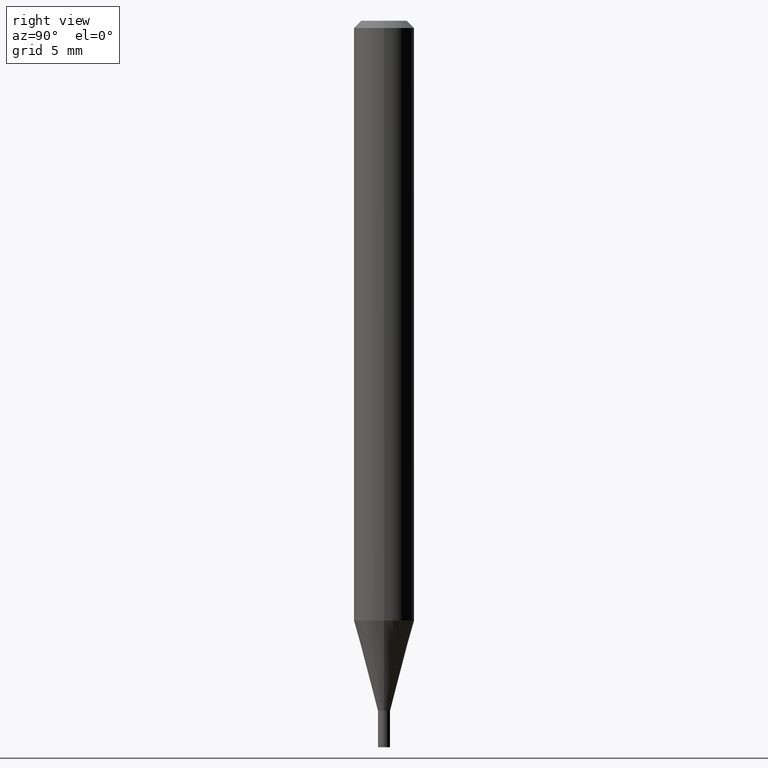
[diagram: clean part render]
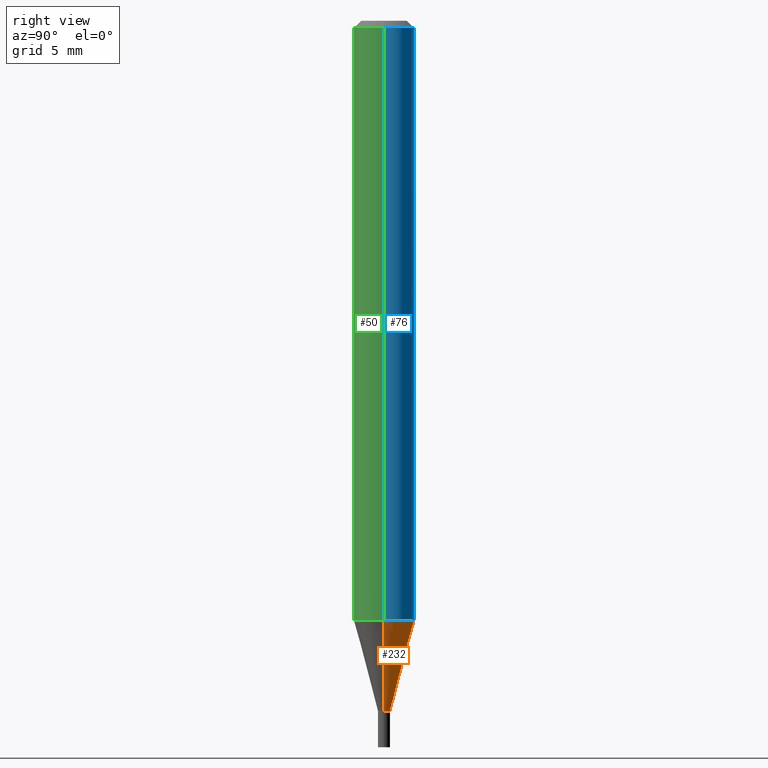
[diagram: same view with three faces highlighted in distinct colors, each labeled with its STEP entity id]
A machine part, right view with three faces highlighted in distinct colors.
Their STEP definitions:

[orange] entity #232 — the highlighted conical surface has half-angle 15 deg.
#2 = DIRECTION ( 'NONE',  ( 1.000000000000000000, -6.982962677686270655E-15, 0.000000000000000000 ) ) ;
#14 = FACE_OUTER_BOUND ( 'NONE', #175, .T. ) ;
#23 = DIRECTION ( 'NONE',  ( 1.000000000000000000, -6.982962677686254089E-15, 0.000000000000000000 ) ) ;
#29 = CARTESIAN_POINT ( 'NONE',  ( -0.01249999999999965375, -4.886543065881473334E-15, -1.425000000000000266 ) ) ;
#46 = AXIS2_PLACEMENT_3D ( 'NONE', #391, #318, #23 ) ;
#48 = ORIENTED_EDGE ( 'NONE', *, *, #462, .F. ) ;
#58 = CARTESIAN_POINT ( 'NONE',  ( 0.01249999999999965375, -5.062647941322559142E-15, -1.425000000000000266 ) ) ;
#60 = LINE ( 'NONE', #214, #437 ) ;
#61 = ORIENTED_EDGE ( 'NONE', *, *, #325, .T. ) ;
#65 = AXIS2_PLACEMENT_3D ( 'NONE', #333, #436, #2 ) ;
#69 = LINE ( 'NONE', #29, #331 ) ;
#84 = DIRECTION ( 'NONE',  ( 1.000000000000000000, -6.982962677686254089E-15, 0.000000000000000000 ) ) ;
#85 = VERTEX_POINT ( 'NONE', #250 ) ;
#110 = CARTESIAN_POINT ( 'NONE',  ( 0.06250000000000000000, -4.760276787694811076E-15, -1.238397459621555452 ) ) ;
#138 = VERTEX_POINT ( 'NONE', #110 ) ;
#175 = EDGE_LOOP ( 'NONE', ( #383, #61, #317, #48 ) ) ;
#179 = EDGE_CURVE ( 'NONE', #138, #421, #235, .T. ) ;
#214 = CARTESIAN_POINT ( 'NONE',  ( 0.01249999999999965375, -5.062647941322559142E-15, -1.425000000000000266 ) ) ;
#232 = ADVANCED_FACE ( 'NONE', ( #14 ), #276, .T. ) ;
#235 = CIRCLE ( 'NONE', #65, 0.06250000000000000000 ) ;
#250 = CARTESIAN_POINT ( 'NONE',  ( -0.01249999999999965375, -4.383147738185414668E-15, -1.425000000000000266 ) ) ;
#276 = CONICAL_SURFACE ( 'NONE', #339, 0.01249999999999965375, 0.2617993877991500740 ) ;
#304 = DIRECTION ( 'NONE',  ( -2.445468806185136597E-29, 3.491481338843145583E-15, 1.000000000000000000 ) ) ;
#309 = EDGE_CURVE ( 'NONE', #319, #85, #455, .T. ) ;
#317 = ORIENTED_EDGE ( 'NONE', *, *, #179, .F. ) ;
#318 = DIRECTION ( 'NONE',  ( -2.445468806185136597E-29, 3.491481338843145583E-15, 1.000000000000000000 ) ) ;
#319 = VERTEX_POINT ( 'NONE', #58 ) ;
#325 = EDGE_CURVE ( 'NONE', #85, #421, #69, .T. ) ;
#331 = VECTOR ( 'NONE', #428, 39.37007874015747433 ) ;
#333 = CARTESIAN_POINT ( 'NONE',  ( 3.028462357163431359E-29, -4.323841620339419407E-15, -1.238397459621555452 ) ) ;
#339 = AXIS2_PLACEMENT_3D ( 'NONE', #342, #304, #84 ) ;
#342 = CARTESIAN_POINT ( 'NONE',  ( 3.484793048813820547E-29, -4.975360907851483175E-15, -1.425000000000000266 ) ) ;
#356 = DIRECTION ( 'NONE',  ( 0.2588190451025213501, 1.565188264969621968E-15, 0.9659258262890682012 ) ) ;
#383 = ORIENTED_EDGE ( 'NONE', *, *, #309, .T. ) ;
#391 = CARTESIAN_POINT ( 'NONE',  ( 3.484793048813820547E-29, -4.975360907851483175E-15, -1.425000000000000266 ) ) ;
#421 = VERTEX_POINT ( 'NONE', #463 ) ;
#428 = DIRECTION ( 'NONE',  ( -0.2588190451025213501, 5.211531920934551042E-15, 0.9659258262890682012 ) ) ;
#436 = DIRECTION ( 'NONE',  ( -2.445468806185136597E-29, 3.491481338843145583E-15, 1.000000000000000000 ) ) ;
#437 = VECTOR ( 'NONE', #356, 39.37007874015747433 ) ;
#455 = CIRCLE ( 'NONE', #46, 0.01249999999999965375 ) ;
#462 = EDGE_CURVE ( 'NONE', #319, #138, #60, .T. ) ;
#463 = CARTESIAN_POINT ( 'NONE',  ( -0.06250000000000000000, -3.879752410489356791E-15, -1.238397459621555452 ) ) ;

[blue] entity #76 — the highlighted cylindrical surface (edge-blend (fillet) strip) has radius 1.5875 mm, axis along (-0, 0, 1).
#2 = DIRECTION ( 'NONE',  ( 1.000000000000000000, -6.982962677686270655E-15, 0.000000000000000000 ) ) ;
#3 = DIRECTION ( 'NONE',  ( -2.445468806185136877E-29, 3.491481338843145188E-15, 1.000000000000000000 ) ) ;
#12 = ORIENTED_EDGE ( 'NONE', *, *, #215, .F. ) ;
#41 = AXIS2_PLACEMENT_3D ( 'NONE', #336, #140, #114 ) ;
#47 = CARTESIAN_POINT ( 'NONE',  ( 3.668203209277705088E-31, -5.237222008264718399E-17, -0.01499999999999999944 ) ) ;
#59 = ORIENTED_EDGE ( 'NONE', *, *, #79, .T. ) ;
#65 = AXIS2_PLACEMENT_3D ( 'NONE', #333, #436, #2 ) ;
#75 = CARTESIAN_POINT ( 'NONE',  ( 0.06250000000000000000, -4.364351673553916694E-16, 3.047610484872459871E-30 ) ) ;
#76 = ADVANCED_FACE ( 'NONE', ( #181 ), #363, .T. ) ;
#79 = EDGE_CURVE ( 'NONE', #421, #211, #101, .T. ) ;
#101 = LINE ( 'NONE', #257, #400 ) ;
#110 = CARTESIAN_POINT ( 'NONE',  ( 0.06250000000000000000, -4.760276787694811076E-15, -1.238397459621555452 ) ) ;
#114 = DIRECTION ( 'NONE',  ( 1.000000000000000000, -6.982962677686266711E-15, 4.876176775795935793E-29 ) ) ;
#120 = CARTESIAN_POINT ( 'NONE',  ( -0.06250000000000000000, -1.744017710360970627E-15, -0.01499999999999999944 ) ) ;
#138 = VERTEX_POINT ( 'NONE', #110 ) ;
#140 = DIRECTION ( 'NONE',  ( -2.445468806185136597E-29, 3.491481338843145583E-15, 1.000000000000000000 ) ) ;
#142 = DIRECTION ( 'NONE',  ( -2.445468806185136877E-29, 3.491481338843145188E-15, 1.000000000000000000 ) ) ;
#148 = EDGE_CURVE ( 'NONE', #138, #446, #225, .T. ) ;
#166 = DIRECTION ( 'NONE',  ( -2.445468806185136597E-29, 3.491481338843145583E-15, 1.000000000000000000 ) ) ;
#179 = EDGE_CURVE ( 'NONE', #138, #421, #235, .T. ) ;
#181 = FACE_OUTER_BOUND ( 'NONE', #289, .T. ) ;
#188 = CIRCLE ( 'NONE', #217, 0.06250000000000000000 ) ;
#197 = DIRECTION ( 'NONE',  ( 1.000000000000000000, -6.982962677686266711E-15, 0.000000000000000000 ) ) ;
#211 = VERTEX_POINT ( 'NONE', #120 ) ;
#215 = EDGE_CURVE ( 'NONE', #446, #211, #188, .T. ) ;
#216 = ORIENTED_EDGE ( 'NONE', *, *, #179, .T. ) ;
#217 = AXIS2_PLACEMENT_3D ( 'NONE', #47, #166, #197 ) ;
#225 = LINE ( 'NONE', #75, #330 ) ;
#235 = CIRCLE ( 'NONE', #65, 0.06250000000000000000 ) ;
#257 = CARTESIAN_POINT ( 'NONE',  ( -0.06250000000000000000, 4.440892098500626162E-16, -3.074334431409316114E-30 ) ) ;
#289 = EDGE_LOOP ( 'NONE', ( #216, #59, #12, #347 ) ) ;
#330 = VECTOR ( 'NONE', #142, 39.37007874015748143 ) ;
#333 = CARTESIAN_POINT ( 'NONE',  ( 3.028462357163431359E-29, -4.323841620339419407E-15, -1.238397459621555452 ) ) ;
#336 = CARTESIAN_POINT ( 'NONE',  ( 0.000000000000000000, 0.000000000000000000, 0.000000000000000000 ) ) ;
#347 = ORIENTED_EDGE ( 'NONE', *, *, #148, .F. ) ;
#360 = CARTESIAN_POINT ( 'NONE',  ( 0.06250000000000000000, -4.888073874380388472E-16, -0.01499999999999999944 ) ) ;
#363 = CYLINDRICAL_SURFACE ( 'NONE', #41, 0.06250000000000000000 ) ;
#400 = VECTOR ( 'NONE', #3, 39.37007874015748143 ) ;
#421 = VERTEX_POINT ( 'NONE', #463 ) ;
#436 = DIRECTION ( 'NONE',  ( -2.445468806185136597E-29, 3.491481338843145583E-15, 1.000000000000000000 ) ) ;
#446 = VERTEX_POINT ( 'NONE', #360 ) ;
#463 = CARTESIAN_POINT ( 'NONE',  ( -0.06250000000000000000, -3.879752410489356791E-15, -1.238397459621555452 ) ) ;

[green] entity #50 — the highlighted cylindrical surface (edge-blend (fillet) strip) has radius 1.5875 mm, axis along (-0, 0, 1).
#3 = DIRECTION ( 'NONE',  ( -2.445468806185136877E-29, 3.491481338843145188E-15, 1.000000000000000000 ) ) ;
#50 = ADVANCED_FACE ( 'NONE', ( #404 ), #221, .T. ) ;
#75 = CARTESIAN_POINT ( 'NONE',  ( 0.06250000000000000000, -4.364351673553916694E-16, 3.047610484872459871E-30 ) ) ;
#79 = EDGE_CURVE ( 'NONE', #421, #211, #101, .T. ) ;
#87 = AXIS2_PLACEMENT_3D ( 'NONE', #186, #434, #461 ) ;
#93 = DIRECTION ( 'NONE',  ( -2.445468806185136597E-29, 3.491481338843145583E-15, 1.000000000000000000 ) ) ;
#101 = LINE ( 'NONE', #257, #400 ) ;
#107 = DIRECTION ( 'NONE',  ( 1.000000000000000000, -6.982962677686270655E-15, 0.000000000000000000 ) ) ;
#110 = CARTESIAN_POINT ( 'NONE',  ( 0.06250000000000000000, -4.760276787694811076E-15, -1.238397459621555452 ) ) ;
#113 = AXIS2_PLACEMENT_3D ( 'NONE', #182, #219, #107 ) ;
#120 = CARTESIAN_POINT ( 'NONE',  ( -0.06250000000000000000, -1.744017710360970627E-15, -0.01499999999999999944 ) ) ;
#138 = VERTEX_POINT ( 'NONE', #110 ) ;
#139 = DIRECTION ( 'NONE',  ( 1.000000000000000000, -6.982962677686266711E-15, 0.000000000000000000 ) ) ;
#142 = DIRECTION ( 'NONE',  ( -2.445468806185136877E-29, 3.491481338843145188E-15, 1.000000000000000000 ) ) ;
#148 = EDGE_CURVE ( 'NONE', #138, #446, #225, .T. ) ;
#169 = CIRCLE ( 'NONE', #113, 0.06250000000000000000 ) ;
#182 = CARTESIAN_POINT ( 'NONE',  ( 3.028462357163431359E-29, -4.323841620339419407E-15, -1.238397459621555452 ) ) ;
#186 = CARTESIAN_POINT ( 'NONE',  ( 0.000000000000000000, 0.000000000000000000, 0.000000000000000000 ) ) ;
#211 = VERTEX_POINT ( 'NONE', #120 ) ;
#219 = DIRECTION ( 'NONE',  ( -2.445468806185136597E-29, 3.491481338843145583E-15, 1.000000000000000000 ) ) ;
#221 = CYLINDRICAL_SURFACE ( 'NONE', #87, 0.06250000000000000000 ) ;
#225 = LINE ( 'NONE', #75, #330 ) ;
#238 = ORIENTED_EDGE ( 'NONE', *, *, #79, .F. ) ;
#243 = ORIENTED_EDGE ( 'NONE', *, *, #148, .T. ) ;
#257 = CARTESIAN_POINT ( 'NONE',  ( -0.06250000000000000000, 4.440892098500626162E-16, -3.074334431409316114E-30 ) ) ;
#260 = AXIS2_PLACEMENT_3D ( 'NONE', #338, #93, #139 ) ;
#285 = CIRCLE ( 'NONE', #260, 0.06250000000000000000 ) ;
#301 = EDGE_CURVE ( 'NONE', #211, #446, #285, .T. ) ;
#315 = ORIENTED_EDGE ( 'NONE', *, *, #431, .T. ) ;
#330 = VECTOR ( 'NONE', #142, 39.37007874015748143 ) ;
#338 = CARTESIAN_POINT ( 'NONE',  ( 3.668203209277705088E-31, -5.237222008264718399E-17, -0.01499999999999999944 ) ) ;
#350 = ORIENTED_EDGE ( 'NONE', *, *, #301, .F. ) ;
#355 = EDGE_LOOP ( 'NONE', ( #238, #315, #243, #350 ) ) ;
#360 = CARTESIAN_POINT ( 'NONE',  ( 0.06250000000000000000, -4.888073874380388472E-16, -0.01499999999999999944 ) ) ;
#400 = VECTOR ( 'NONE', #3, 39.37007874015748143 ) ;
#404 = FACE_OUTER_BOUND ( 'NONE', #355, .T. ) ;
#421 = VERTEX_POINT ( 'NONE', #463 ) ;
#431 = EDGE_CURVE ( 'NONE', #421, #138, #169, .T. ) ;
#434 = DIRECTION ( 'NONE',  ( -2.445468806185136597E-29, 3.491481338843145583E-15, 1.000000000000000000 ) ) ;
#446 = VERTEX_POINT ( 'NONE', #360 ) ;
#461 = DIRECTION ( 'NONE',  ( 1.000000000000000000, -6.982962677686266711E-15, 4.876176775795935793E-29 ) ) ;
#463 = CARTESIAN_POINT ( 'NONE',  ( -0.06250000000000000000, -3.879752410489356791E-15, -1.238397459621555452 ) ) ;